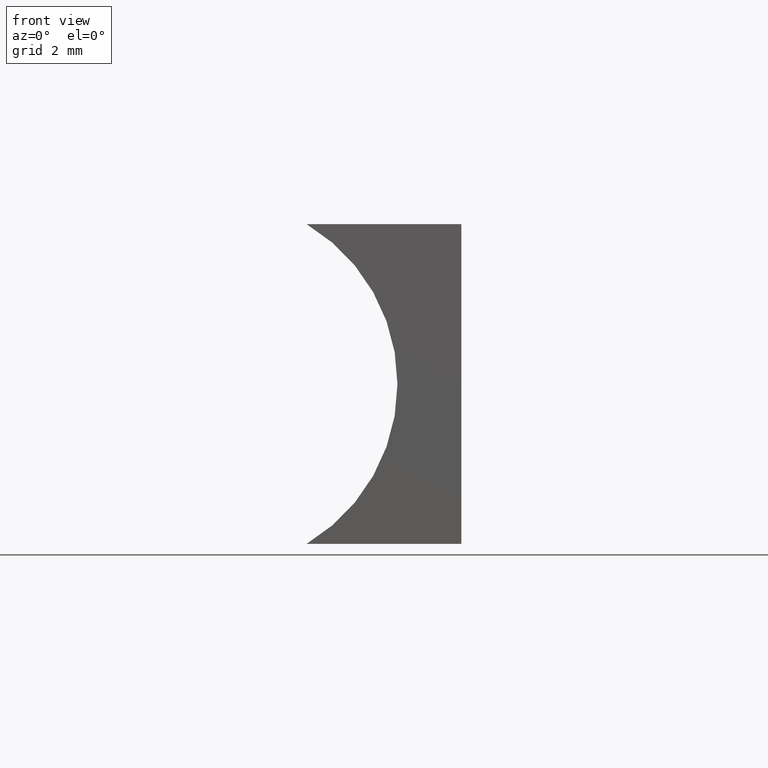
[diagram: clean part render]
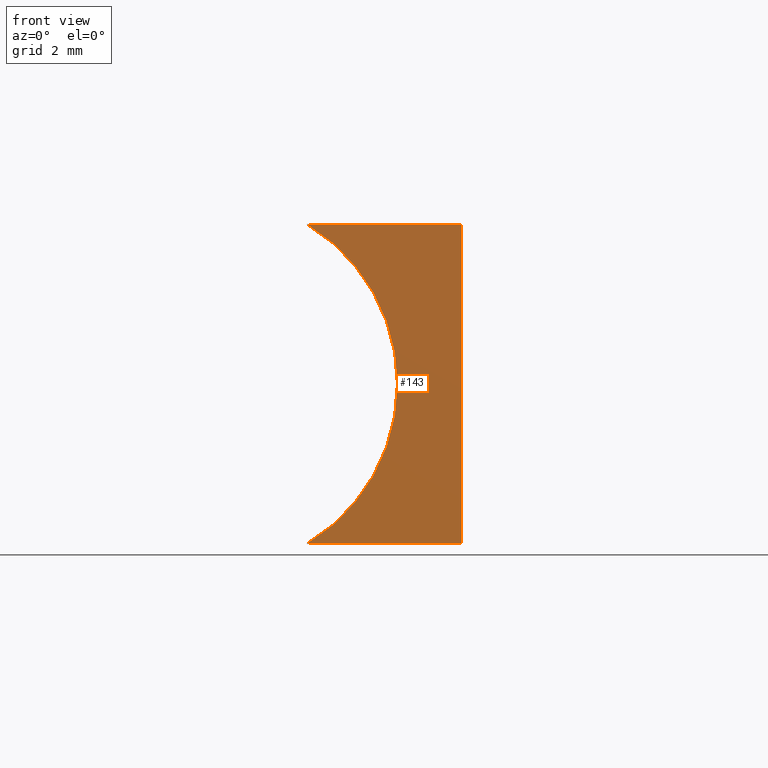
[diagram: same view with one face highlighted and labeled with its STEP entity id]
A machine part, front view. The second image highlights one B-rep face of the part: STEP entity #143.
In plain terms, the highlighted planar face has unit normal (0, 1, 0).
Its self-contained STEP definition (entity closure, byte-faithful):
#1 = VECTOR ( 'NONE', #171, 1000.000000000000000 ) ;
#3 = DIRECTION ( 'NONE',  ( 0.0000000000000000000, 1.000000000000000000, 0.0000000000000000000 ) ) ;
#14 = EDGE_CURVE ( 'NONE', #24, #46, #174, .T. ) ;
#24 = VERTEX_POINT ( 'NONE', #78 ) ;
#25 = CARTESIAN_POINT ( 'NONE',  ( 6.123233995736766300E-016, 0.0000000000000000000, 10.00000000000000000 ) ) ;
#28 = AXIS2_PLACEMENT_3D ( 'NONE', #176, #82, #39 ) ;
#31 = DIRECTION ( 'NONE',  ( -6.123233995736766000E-017, -0.0000000000000000000, -1.000000000000000000 ) ) ;
#39 = DIRECTION ( 'NONE',  ( 0.0000000000000000000, 0.0000000000000000000, 1.000000000000000000 ) ) ;
#42 = AXIS2_PLACEMENT_3D ( 'NONE', #71, #3, #185 ) ;
#46 = VERTEX_POINT ( 'NONE', #25 ) ;
#56 = PLANE ( 'NONE',  #42 ) ;
#57 = LINE ( 'NONE', #186, #1 ) ;
#64 = VECTOR ( 'NONE', #31, 1000.000000000000000 ) ;
#70 = ORIENTED_EDGE ( 'NONE', *, *, #14, .F. ) ;
#71 = CARTESIAN_POINT ( 'NONE',  ( -7.819999999999993200, 0.0000000000000000000, 5.000000000000001800 ) ) ;
#76 = VERTEX_POINT ( 'NONE', #166 ) ;
#78 = CARTESIAN_POINT ( 'NONE',  ( -4.841342584317565000, 0.0000000000000000000, 9.999999999999998200 ) ) ;
#82 = DIRECTION ( 'NONE',  ( -0.0000000000000000000, -1.000000000000000000, -0.0000000000000000000 ) ) ;
#87 = CIRCLE ( 'NONE', #28, 5.819999999999991400 ) ;
#90 = EDGE_LOOP ( 'NONE', ( #156, #114, #70, #111 ) ) ;
#91 = DIRECTION ( 'NONE',  ( 1.000000000000000000, -0.0000000000000000000, 3.583145472076385000E-016 ) ) ;
#111 = ORIENTED_EDGE ( 'NONE', *, *, #113, .F. ) ;
#113 = EDGE_CURVE ( 'NONE', #76, #24, #87, .T. ) ;
#114 = ORIENTED_EDGE ( 'NONE', *, *, #157, .F. ) ;
#116 = CARTESIAN_POINT ( 'NONE',  ( 0.0000000000000000000, 0.0000000000000000000, 0.0000000000000000000 ) ) ;
#121 = CARTESIAN_POINT ( 'NONE',  ( 0.0000000000000000000, 0.0000000000000000000, 0.0000000000000000000 ) ) ;
#123 = CARTESIAN_POINT ( 'NONE',  ( 6.123233995736766300E-016, 0.0000000000000000000, 10.00000000000000000 ) ) ;
#125 = EDGE_CURVE ( 'NONE', #201, #76, #57, .T. ) ;
#143 = ADVANCED_FACE ( 'NONE', ( #180 ), #56, .F. ) ;
#152 = LINE ( 'NONE', #121, #64 ) ;
#156 = ORIENTED_EDGE ( 'NONE', *, *, #125, .F. ) ;
#157 = EDGE_CURVE ( 'NONE', #46, #201, #152, .T. ) ;
#166 = CARTESIAN_POINT ( 'NONE',  ( -4.841342584317566800, 0.0000000000000000000, 2.602085213965210600E-015 ) ) ;
#171 = DIRECTION ( 'NONE',  ( -1.000000000000000000, 0.0000000000000000000, 3.583145472076385000E-016 ) ) ;
#173 = VECTOR ( 'NONE', #91, 1000.000000000000000 ) ;
#174 = LINE ( 'NONE', #123, #173 ) ;
#176 = CARTESIAN_POINT ( 'NONE',  ( -7.819999999999993200, 0.0000000000000000000, 5.000000000000001800 ) ) ;
#180 = FACE_OUTER_BOUND ( 'NONE', #90, .T. ) ;
#185 = DIRECTION ( 'NONE',  ( 0.0000000000000000000, -0.0000000000000000000, 1.000000000000000000 ) ) ;
#186 = CARTESIAN_POINT ( 'NONE',  ( 0.0000000000000000000, 0.0000000000000000000, 0.0000000000000000000 ) ) ;
#201 = VERTEX_POINT ( 'NONE', #116 ) ;